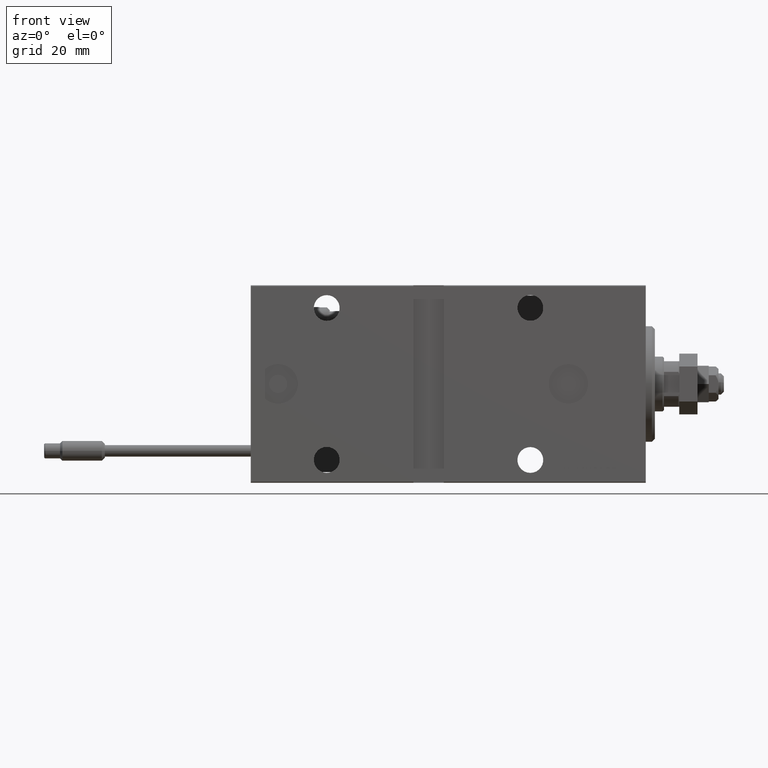
[diagram: clean part render]
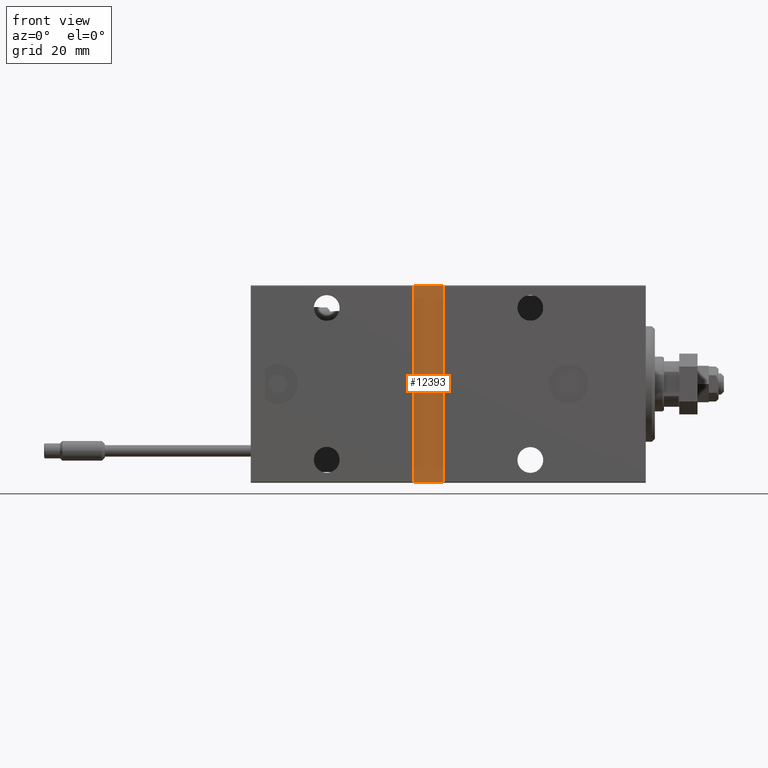
[diagram: same view with one face highlighted and labeled with its STEP entity id]
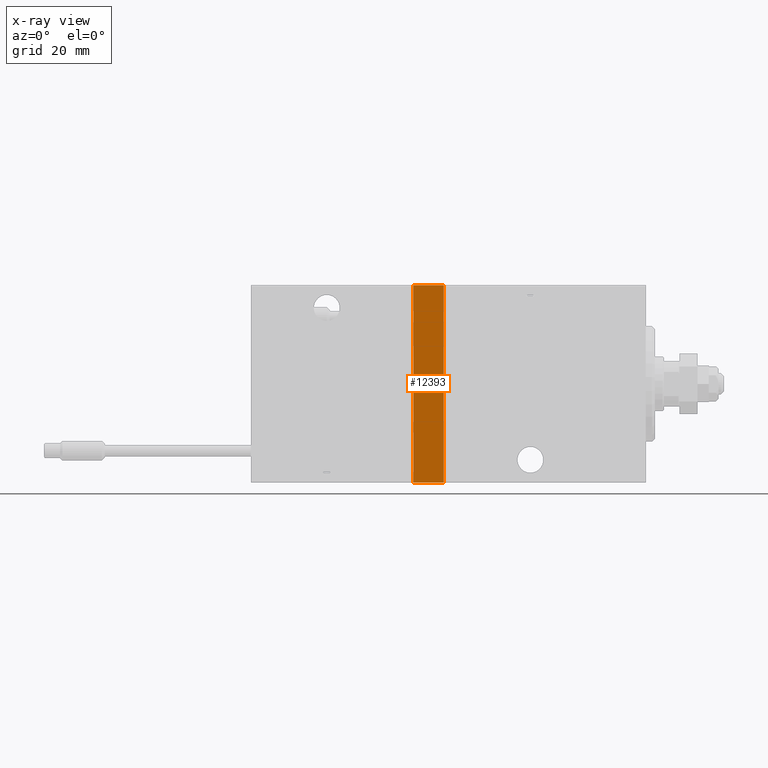
[diagram: x-ray of the same camera — body ghosted, the highlighted face saturated]
A machine part, front view. The second image highlights one B-rep face of the part: STEP entity #12393.
The next image is the same camera in x-ray: the body ghosted, the highlighted face saturated — about 0% of this face is hidden behind the body in this view.
In plain terms, the highlighted planar face has unit normal (-0, 1, -0).
Its self-contained STEP definition (entity closure, byte-faithful):
#39 = FACE_OUTER_BOUND ( 'NONE', #34331, .T. ) ;
#416 = EDGE_CURVE ( 'NONE', #10386, #13897, #47667, .T. ) ;
#673 = VECTOR ( 'NONE', #42053, 1000.000000000000000 ) ;
#3317 = EDGE_CURVE ( 'NONE', #19685, #10386, #22941, .T. ) ;
#3856 = DIRECTION ( 'NONE',  ( 0.000000000000000000, 1.067522139062648576E-16, -1.000000000000000000 ) ) ;
#5656 = CARTESIAN_POINT ( 'NONE',  ( 76.50000000000000000, 20.50000000000000355, -32.50000000000009948 ) ) ;
#6804 = VECTOR ( 'NONE', #44928, 1000.000000000000000 ) ;
#7591 = CARTESIAN_POINT ( 'NONE',  ( 76.50000000000000000, 20.50000000000000000, -32.50000000000000000 ) ) ;
#7769 = ORIENTED_EDGE ( 'NONE', *, *, #11749, .T. ) ;
#10386 = VERTEX_POINT ( 'NONE', #46605 ) ;
#11749 = EDGE_CURVE ( 'NONE', #27474, #19685, #42294, .T. ) ;
#12393 = ADVANCED_FACE ( 'NONE', ( #39 ), #26689, .F. ) ;
#12929 = ORIENTED_EDGE ( 'NONE', *, *, #3317, .T. ) ;
#12943 = DIRECTION ( 'NONE',  ( 1.000000000000000000, -0.000000000000000000, -0.000000000000000000 ) ) ;
#13897 = VERTEX_POINT ( 'NONE', #45572 ) ;
#18919 = VECTOR ( 'NONE', #12943, 1000.000000000000000 ) ;
#19685 = VERTEX_POINT ( 'NONE', #26388 ) ;
#22941 = LINE ( 'NONE', #39669, #27079 ) ;
#24941 = LINE ( 'NONE', #5656, #6804 ) ;
#26388 = CARTESIAN_POINT ( 'NONE',  ( 66.50000000000001421, 20.50000000000000355, -32.50000000000009948 ) ) ;
#26689 = PLANE ( 'NONE',  #32290 ) ;
#27079 = VECTOR ( 'NONE', #38903, 1000.000000000000000 ) ;
#27474 = VERTEX_POINT ( 'NONE', #7591 ) ;
#27571 = CARTESIAN_POINT ( 'NONE',  ( 76.50000000000000000, 20.50000000000000355, -32.50000000000009948 ) ) ;
#29999 = DIRECTION ( 'NONE',  ( 0.000000000000000000, -1.000000000000000000, -1.067522139062648576E-16 ) ) ;
#31965 = ORIENTED_EDGE ( 'NONE', *, *, #416, .T. ) ;
#32290 = AXIS2_PLACEMENT_3D ( 'NONE', #46218, #29999, #3856 ) ;
#34331 = EDGE_LOOP ( 'NONE', ( #12929, #31965, #42900, #7769 ) ) ;
#37686 = EDGE_CURVE ( 'NONE', #13897, #27474, #24941, .T. ) ;
#38903 = DIRECTION ( 'NONE',  ( 0.000000000000000000, -1.067522139062648576E-16, 1.000000000000000000 ) ) ;
#39669 = CARTESIAN_POINT ( 'NONE',  ( 66.50000000000001421, 20.50000000000000355, -32.50000000000009948 ) ) ;
#40324 = CARTESIAN_POINT ( 'NONE',  ( 76.50000000000000000, 20.49999999999999645, 32.50000000000000711 ) ) ;
#42053 = DIRECTION ( 'NONE',  ( -1.000000000000000000, 0.000000000000000000, 0.000000000000000000 ) ) ;
#42294 = LINE ( 'NONE', #27571, #673 ) ;
#42900 = ORIENTED_EDGE ( 'NONE', *, *, #37686, .T. ) ;
#44928 = DIRECTION ( 'NONE',  ( -0.000000000000000000, 1.067522139062648576E-16, -1.000000000000000000 ) ) ;
#45572 = CARTESIAN_POINT ( 'NONE',  ( 76.50000000000000000, 20.49999999999999645, 32.50000000000000711 ) ) ;
#46218 = CARTESIAN_POINT ( 'NONE',  ( 0.000000000000000000, 20.49999999999999645, 2.149601398203423530E-15 ) ) ;
#46605 = CARTESIAN_POINT ( 'NONE',  ( 66.50000000000001421, 20.49999999999999645, 32.50000000000000711 ) ) ;
#47667 = LINE ( 'NONE', #40324, #18919 ) ;